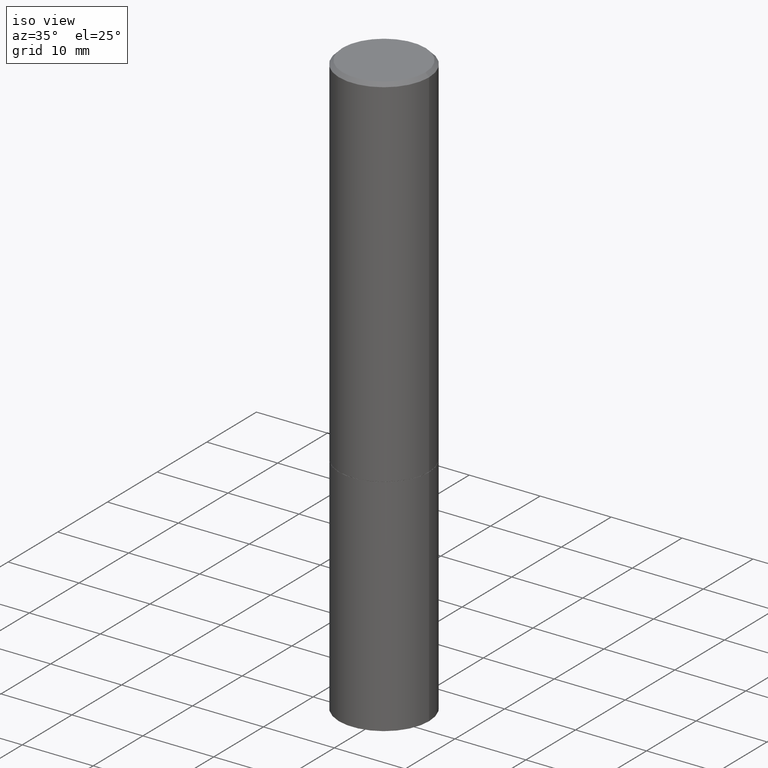
[diagram: clean part render]
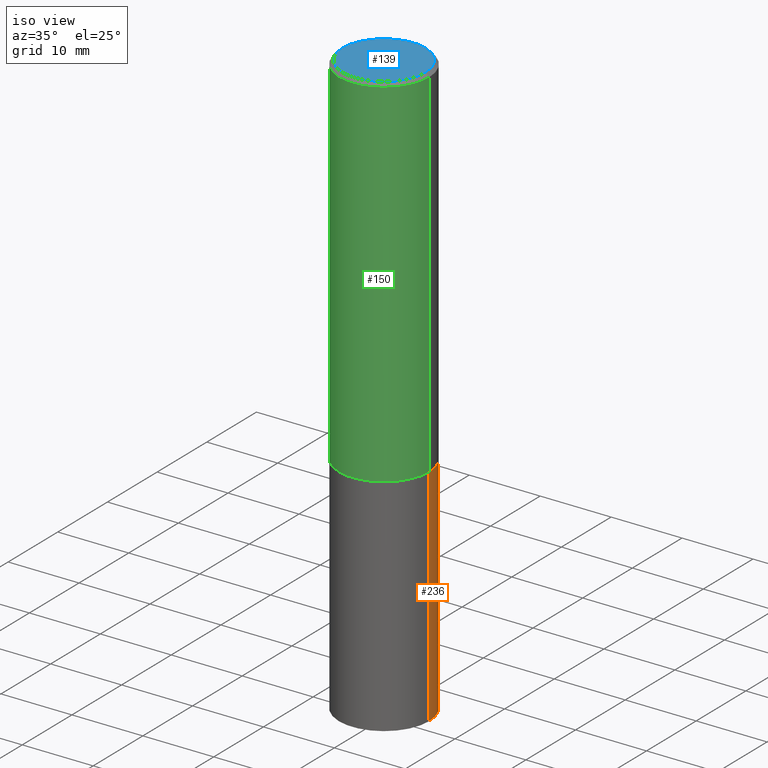
[diagram: same view with three faces highlighted in distinct colors, each labeled with its STEP entity id]
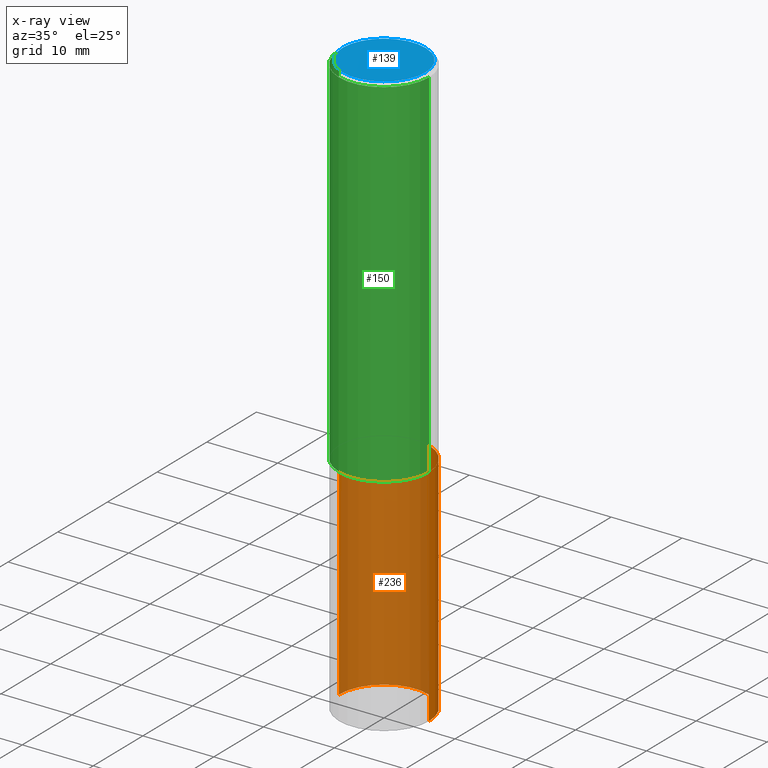
[diagram: x-ray of the same camera — body ghosted, the three highlighted faces saturated]
A machine part, iso view with three faces highlighted in distinct colors.
The next image is the same camera in x-ray (body ghosted, the three faces saturated) — at least one of them is partly hidden behind the body in this view.
Their STEP definitions:

[orange] entity #236 — the highlighted cylindrical surface (partial cylindrical patch) has radius 6.35 mm, axis along (-0, 0, 1).
#4 = EDGE_LOOP ( 'NONE', ( #330, #25, #141, #225 ) ) ;
#7 = AXIS2_PLACEMENT_3D ( 'NONE', #85, #186, #196 ) ;
#25 = ORIENTED_EDGE ( 'NONE', *, *, #240, .T. ) ;
#26 = CIRCLE ( 'NONE', #231, 0.2500000000000000000 ) ;
#47 = DIRECTION ( 'NONE',  ( 1.000000000000000000, -6.982962677686266711E-15, 4.876176775795935793E-29 ) ) ;
#51 = CARTESIAN_POINT ( 'NONE',  ( 0.2500000000000000000, -1.745740669421566678E-15, 1.219044193948983948E-29 ) ) ;
#60 = AXIS2_PLACEMENT_3D ( 'NONE', #270, #182, #47 ) ;
#65 = DIRECTION ( 'NONE',  ( 1.000000000000000000, -6.982962677686266711E-15, 0.000000000000000000 ) ) ;
#75 = EDGE_CURVE ( 'NONE', #109, #91, #26, .T. ) ;
#85 = CARTESIAN_POINT ( 'NONE',  ( 7.947773620101693940E-29, -1.134731435124022443E-14, -3.250000000000000000 ) ) ;
#91 = VERTEX_POINT ( 'NONE', #155 ) ;
#109 = VERTEX_POINT ( 'NONE', #178 ) ;
#116 = VECTOR ( 'NONE', #187, 39.37007874015748143 ) ;
#141 = ORIENTED_EDGE ( 'NONE', *, *, #75, .F. ) ;
#155 = CARTESIAN_POINT ( 'NONE',  ( -0.2500000000000000000, -7.388781675063007725E-15, -2.000000000000000000 ) ) ;
#162 = CYLINDRICAL_SURFACE ( 'NONE', #60, 0.2500000000000000000 ) ;
#169 = LINE ( 'NONE', #51, #174 ) ;
#174 = VECTOR ( 'NONE', #361, 39.37007874015748143 ) ;
#178 = CARTESIAN_POINT ( 'NONE',  ( 0.2500000000000000000, -8.728703347107857054E-15, -2.000000000000000000 ) ) ;
#182 = DIRECTION ( 'NONE',  ( -2.445468806185136597E-29, 3.491481338843145583E-15, 1.000000000000000000 ) ) ;
#186 = DIRECTION ( 'NONE',  ( -2.445468806185136597E-29, 3.491481338843145583E-15, 1.000000000000000000 ) ) ;
#187 = DIRECTION ( 'NONE',  ( -2.445468806185136877E-29, 3.491481338843145188E-15, 1.000000000000000000 ) ) ;
#190 = VERTEX_POINT ( 'NONE', #264 ) ;
#196 = DIRECTION ( 'NONE',  ( 1.000000000000000000, -6.982962677686262766E-15, 0.000000000000000000 ) ) ;
#225 = ORIENTED_EDGE ( 'NONE', *, *, #286, .F. ) ;
#229 = VERTEX_POINT ( 'NONE', #298 ) ;
#231 = AXIS2_PLACEMENT_3D ( 'NONE', #320, #260, #65 ) ;
#236 = ADVANCED_FACE ( 'NONE', ( #273 ), #162, .T. ) ;
#240 = EDGE_CURVE ( 'NONE', #229, #91, #249, .T. ) ;
#249 = LINE ( 'NONE', #328, #116 ) ;
#260 = DIRECTION ( 'NONE',  ( -2.445468806185136597E-29, 3.491481338843145583E-15, 1.000000000000000000 ) ) ;
#264 = CARTESIAN_POINT ( 'NONE',  ( 0.2500000000000000000, -1.309305502066178953E-14, -3.250000000000000000 ) ) ;
#270 = CARTESIAN_POINT ( 'NONE',  ( 0.000000000000000000, 0.000000000000000000, 0.000000000000000000 ) ) ;
#273 = FACE_OUTER_BOUND ( 'NONE', #4, .T. ) ;
#286 = EDGE_CURVE ( 'NONE', #190, #109, #169, .T. ) ;
#298 = CARTESIAN_POINT ( 'NONE',  ( -0.2500000000000000000, -7.388781675063007725E-15, -3.250000000000000000 ) ) ;
#301 = EDGE_CURVE ( 'NONE', #190, #229, #329, .T. ) ;
#320 = CARTESIAN_POINT ( 'NONE',  ( 4.890937612370273194E-29, -6.982962677686291165E-15, -2.000000000000000000 ) ) ;
#328 = CARTESIAN_POINT ( 'NONE',  ( -0.2500000000000000000, 1.776356839400250465E-15, -1.229733772563726445E-29 ) ) ;
#329 = CIRCLE ( 'NONE', #7, 0.2500000000000000000 ) ;
#330 = ORIENTED_EDGE ( 'NONE', *, *, #301, .T. ) ;
#361 = DIRECTION ( 'NONE',  ( -2.445468806185136877E-29, 3.491481338843145188E-15, 1.000000000000000000 ) ) ;

[blue] entity #139 — the highlighted planar face has unit normal (0, -0, -1).
#9 = PLANE ( 'NONE',  #253 ) ;
#57 = ORIENTED_EDGE ( 'NONE', *, *, #354, .T. ) ;
#59 = CIRCLE ( 'NONE', #303, 0.2299999999999997602 ) ;
#62 = CARTESIAN_POINT ( 'NONE',  ( -0.2299999999999997602, 1.640996229256270941E-15, 4.268512490089056766E-18 ) ) ;
#104 = CARTESIAN_POINT ( 'NONE',  ( -1.043851414335219820E-46, 1.490343170380447200E-32, 4.268512490100411279E-18 ) ) ;
#107 = DIRECTION ( 'NONE',  ( 1.000000000000000000, -6.982962677686267499E-15, 4.876225828469313926E-29 ) ) ;
#118 = VERTEX_POINT ( 'NONE', #62 ) ;
#119 = DIRECTION ( 'NONE',  ( 2.438088387897960049E-29, -3.491481338843145188E-15, -1.000000000000000000 ) ) ;
#139 = ADVANCED_FACE ( 'NONE', ( #291 ), #9, .F. ) ;
#142 = DIRECTION ( 'NONE',  ( -2.445468806185136597E-29, 3.491481338843145583E-15, 1.000000000000000000 ) ) ;
#156 = DIRECTION ( 'NONE',  ( -1.000000000000000000, 6.982962677686265922E-15, -4.876176775795935793E-29 ) ) ;
#157 = AXIS2_PLACEMENT_3D ( 'NONE', #104, #263, #365 ) ;
#158 = CARTESIAN_POINT ( 'NONE',  ( -1.043851414335219820E-46, 1.490343170380447200E-32, 4.268512490100411279E-18 ) ) ;
#171 = ORIENTED_EDGE ( 'NONE', *, *, #327, .T. ) ;
#199 = VERTEX_POINT ( 'NONE', #285 ) ;
#253 = AXIS2_PLACEMENT_3D ( 'NONE', #288, #119, #156 ) ;
#254 = EDGE_LOOP ( 'NONE', ( #57, #171 ) ) ;
#263 = DIRECTION ( 'NONE',  ( -2.445468806185136597E-29, 3.491481338843145583E-15, 1.000000000000000000 ) ) ;
#285 = CARTESIAN_POINT ( 'NONE',  ( 0.2299999999999997602, -1.681434332853597631E-15, 4.268512490111905999E-18 ) ) ;
#288 = CARTESIAN_POINT ( 'NONE',  ( 1.606081415867839490E-15, 0.2299999999999997602, -8.009064516888724897E-16 ) ) ;
#291 = FACE_OUTER_BOUND ( 'NONE', #254, .T. ) ;
#303 = AXIS2_PLACEMENT_3D ( 'NONE', #158, #142, #107 ) ;
#313 = CIRCLE ( 'NONE', #157, 0.2299999999999997602 ) ;
#327 = EDGE_CURVE ( 'NONE', #199, #118, #59, .T. ) ;
#354 = EDGE_CURVE ( 'NONE', #118, #199, #313, .T. ) ;
#365 = DIRECTION ( 'NONE',  ( 1.000000000000000000, -6.982962677686267499E-15, 4.876225828469313926E-29 ) ) ;

[green] entity #150 — the highlighted cylindrical surface (partial cylindrical patch) has radius 6.35 mm, axis along (-0, 0, 1).
#16 = DIRECTION ( 'NONE',  ( -2.445468806185136877E-29, 3.491481338843145188E-15, 1.000000000000000000 ) ) ;
#37 = FACE_OUTER_BOUND ( 'NONE', #343, .T. ) ;
#45 = DIRECTION ( 'NONE',  ( 1.000000000000000000, -6.982962677686266711E-15, 0.000000000000000000 ) ) ;
#49 = EDGE_CURVE ( 'NONE', #345, #295, #219, .T. ) ;
#53 = CIRCLE ( 'NONE', #266, 0.2500000000000000000 ) ;
#54 = CARTESIAN_POINT ( 'NONE',  ( -0.2499999999999998890, 1.776356839400249676E-15, -1.229733772563726025E-29 ) ) ;
#66 = EDGE_CURVE ( 'NONE', #311, #251, #180, .T. ) ;
#79 = DIRECTION ( 'NONE',  ( -2.445468806185136597E-29, 3.491481338843145583E-15, 1.000000000000000000 ) ) ;
#88 = ORIENTED_EDGE ( 'NONE', *, *, #261, .F. ) ;
#95 = AXIS2_PLACEMENT_3D ( 'NONE', #230, #344, #96 ) ;
#96 = DIRECTION ( 'NONE',  ( 1.000000000000000000, -6.982962677686266711E-15, 4.876176775795935793E-29 ) ) ;
#100 = DIRECTION ( 'NONE',  ( -2.445468806185136877E-29, 3.491481338843145188E-15, 1.000000000000000000 ) ) ;
#105 = CARTESIAN_POINT ( 'NONE',  ( -0.2500000000000000000, -1.748293572161903489E-15, -1.998999999999999888 ) ) ;
#112 = CARTESIAN_POINT ( 'NONE',  ( 4.888492143564087591E-29, -6.979471196347447369E-15, -1.998999999999999888 ) ) ;
#120 = AXIS2_PLACEMENT_3D ( 'NONE', #140, #247, #45 ) ;
#126 = CYLINDRICAL_SURFACE ( 'NONE', #95, 0.2499999999999998890 ) ;
#140 = CARTESIAN_POINT ( 'NONE',  ( 4.890937612370288923E-31, -6.982962677686312563E-17, -0.02000000000000006287 ) ) ;
#143 = ORIENTED_EDGE ( 'NONE', *, *, #49, .F. ) ;
#145 = VECTOR ( 'NONE', #16, 39.37007874015748143 ) ;
#150 = ADVANCED_FACE ( 'NONE', ( #37 ), #126, .T. ) ;
#180 = LINE ( 'NONE', #256, #184 ) ;
#184 = VECTOR ( 'NONE', #100, 39.37007874015748143 ) ;
#218 = DIRECTION ( 'NONE',  ( 1.000000000000000000, -6.982962677686266711E-15, 0.000000000000000000 ) ) ;
#219 = LINE ( 'NONE', #54, #145 ) ;
#221 = CARTESIAN_POINT ( 'NONE',  ( 0.2499999999999998057, -1.784954126219744611E-15, -0.02000000000000006287 ) ) ;
#230 = CARTESIAN_POINT ( 'NONE',  ( 0.000000000000000000, 0.000000000000000000, 0.000000000000000000 ) ) ;
#238 = CIRCLE ( 'NONE', #120, 0.2499999999999998057 ) ;
#247 = DIRECTION ( 'NONE',  ( -2.445468806185136597E-29, 3.491481338843145583E-15, 1.000000000000000000 ) ) ;
#250 = ORIENTED_EDGE ( 'NONE', *, *, #277, .T. ) ;
#251 = VERTEX_POINT ( 'NONE', #221 ) ;
#256 = CARTESIAN_POINT ( 'NONE',  ( 0.2499999999999998890, -1.745740669421565889E-15, 1.219044193948983388E-29 ) ) ;
#261 = EDGE_CURVE ( 'NONE', #295, #251, #238, .T. ) ;
#266 = AXIS2_PLACEMENT_3D ( 'NONE', #112, #79, #218 ) ;
#277 = EDGE_CURVE ( 'NONE', #345, #311, #53, .T. ) ;
#295 = VERTEX_POINT ( 'NONE', #362 ) ;
#297 = CARTESIAN_POINT ( 'NONE',  ( 0.2500000000000000000, -8.725211865769014047E-15, -1.998999999999999888 ) ) ;
#310 = ORIENTED_EDGE ( 'NONE', *, *, #66, .T. ) ;
#311 = VERTEX_POINT ( 'NONE', #297 ) ;
#343 = EDGE_LOOP ( 'NONE', ( #143, #250, #310, #88 ) ) ;
#344 = DIRECTION ( 'NONE',  ( -2.445468806185136597E-29, 3.491481338843145583E-15, 1.000000000000000000 ) ) ;
#345 = VERTEX_POINT ( 'NONE', #105 ) ;
#362 = CARTESIAN_POINT ( 'NONE',  ( -0.2499999999999998057, 1.675911042644702196E-15, -0.02000000000000006287 ) ) ;